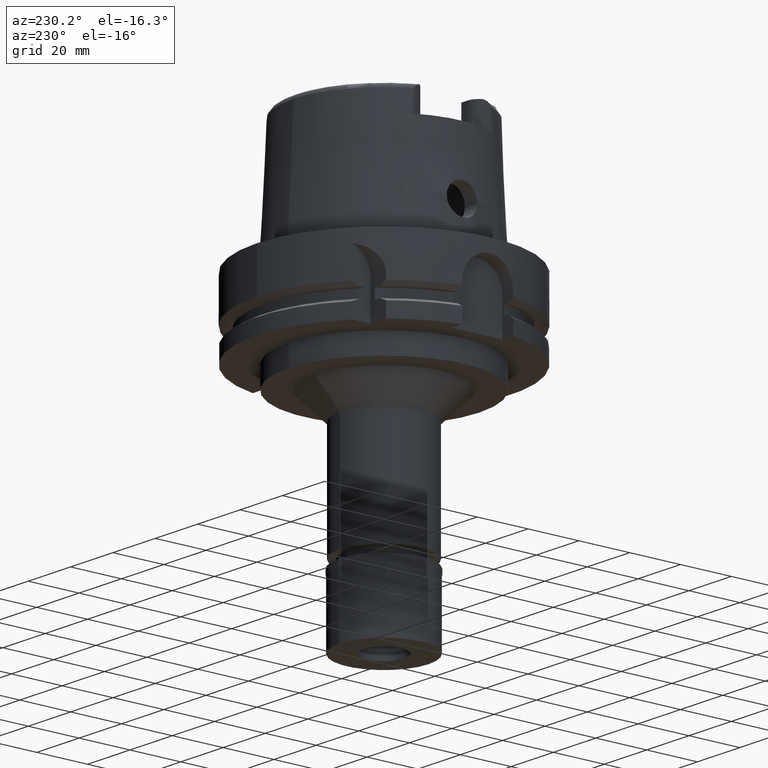
[diagram: clean part render]
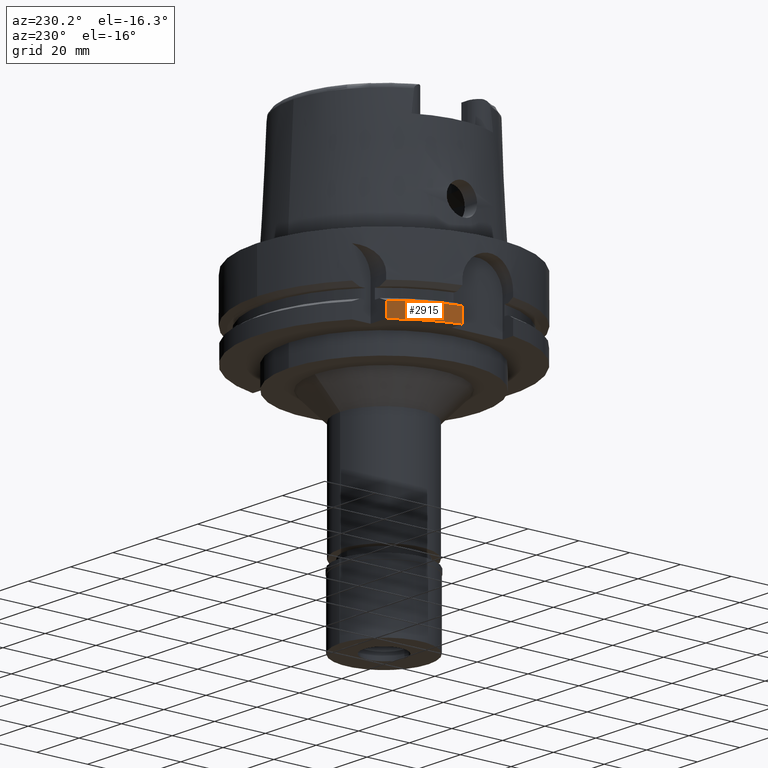
[diagram: same view with one face highlighted and labeled with its STEP entity id]
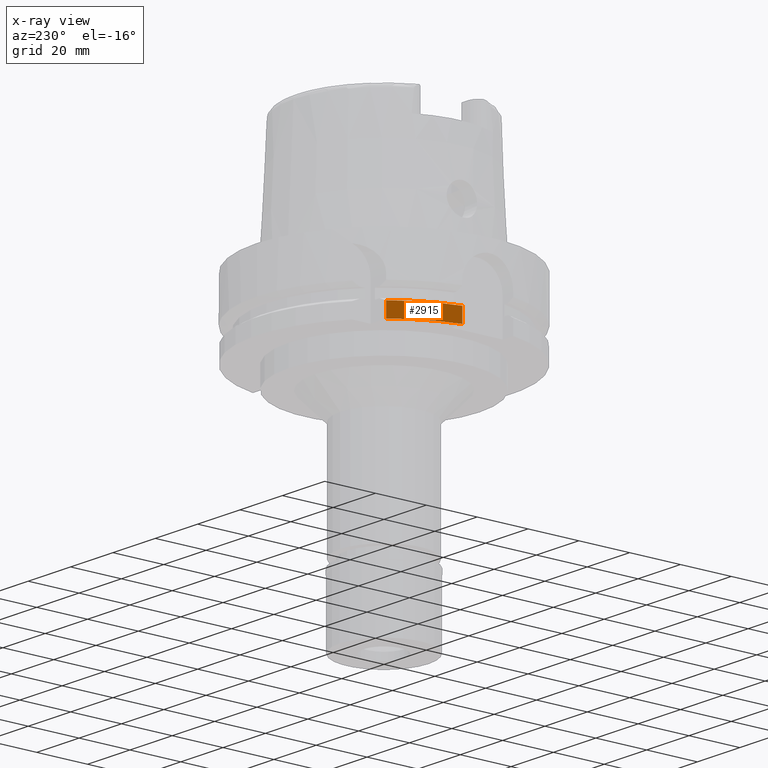
[diagram: x-ray of the same camera — body ghosted, the highlighted face saturated]
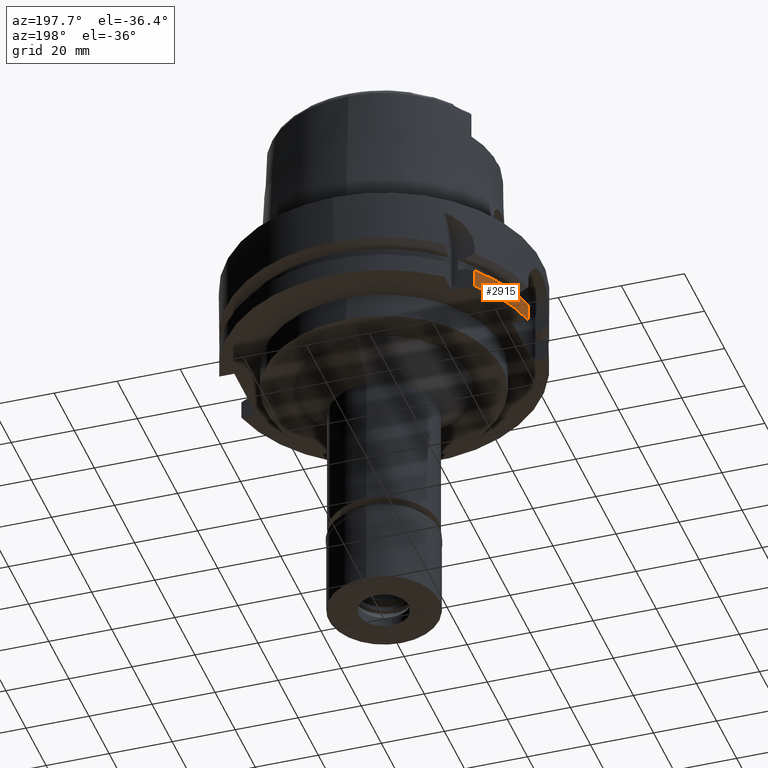
[diagram: same view with one face highlighted and labeled with its STEP entity id]
A machine part, auxiliary view. The second image highlights one B-rep face of the part: STEP entity #2915.
The next image is the same camera in x-ray: the body ghosted, the highlighted face saturated — about 0% of this face is hidden behind the body in this view.
A second angle (auxiliary view) of the same face is appended — the face is thin or edge-on in the first view.
In plain terms, the highlighted cylindrical surface (partial cylindrical patch) has radius 50 mm, axis along (0, 0, 1).
Its self-contained STEP definition (entity closure, byte-faithful):
#47 = VECTOR ( 'NONE', #2283, 1000.000000000000000 ) ;
#54 = CARTESIAN_POINT ( 'NONE',  ( -38.82975730076999810, 31.49999917402000094, -23.24759226099000031 ) ) ;
#174 = VERTEX_POINT ( 'NONE', #54 ) ;
#191 = CARTESIAN_POINT ( 'NONE',  ( -38.82975663071000128, 31.50000000000000000, -29.00000000000000000 ) ) ;
#321 = DIRECTION ( 'NONE',  ( -0.7765951326141738997, 0.6299999999999789102, 0.0000000000000000000 ) ) ;
#377 = CARTESIAN_POINT ( 'NONE',  ( 0.0000000000000000000, 0.0000000000000000000, -29.00000000000000000 ) ) ;
#461 = DIRECTION ( 'NONE',  ( -0.9797958971132723072, 0.1999999999999946265, 0.0000000000000000000 ) ) ;
#526 = DIRECTION ( 'NONE',  ( 0.0000000000000000000, 1.000000000000000000, 0.0000000000000000000 ) ) ;
#895 = CARTESIAN_POINT ( 'NONE',  ( 0.0000000000000000000, 0.0000000000000000000, -116.9500000000000028 ) ) ;
#1036 = AXIS2_PLACEMENT_3D ( 'NONE', #377, #2873, #321 ) ;
#1184 = ORIENTED_EDGE ( 'NONE', *, *, #3256, .T. ) ;
#1230 = CIRCLE ( 'NONE', #4359, 49.99999999999997868 ) ;
#1267 = CYLINDRICAL_SURFACE ( 'NONE', #2646, 50.00000000000000000 ) ;
#1275 = EDGE_CURVE ( 'NONE', #2254, #1945, #1429, .T. ) ;
#1429 = LINE ( 'NONE', #3117, #47 ) ;
#1747 = VECTOR ( 'NONE', #1892, 1000.000000000000227 ) ;
#1750 = FACE_OUTER_BOUND ( 'NONE', #3136, .T. ) ;
#1892 = DIRECTION ( 'NONE',  ( -1.164835666499979694E-07, -1.435883620958975412E-07, 0.9999999999999827915 ) ) ;
#1945 = VERTEX_POINT ( 'NONE', #4149 ) ;
#1981 = VERTEX_POINT ( 'NONE', #4863 ) ;
#2233 = ORIENTED_EDGE ( 'NONE', *, *, #5216, .T. ) ;
#2254 = VERTEX_POINT ( 'NONE', #4733 ) ;
#2283 = DIRECTION ( 'NONE',  ( -8.399427413532000465E-14, 0.0000000000000000000, -1.000000000000000000 ) ) ;
#2317 = LINE ( 'NONE', #191, #1747 ) ;
#2646 = AXIS2_PLACEMENT_3D ( 'NONE', #895, #4270, #526 ) ;
#2873 = DIRECTION ( 'NONE',  ( 0.0000000000000000000, 0.0000000000000000000, 1.000000000000000000 ) ) ;
#2878 = ORIENTED_EDGE ( 'NONE', *, *, #1275, .F. ) ;
#2915 = ADVANCED_FACE ( 'NONE', ( #1750 ), #1267, .T. ) ;
#2963 = CARTESIAN_POINT ( 'NONE',  ( 0.0000000000000000000, 0.0000000000000000000, -23.24759526419000011 ) ) ;
#3117 = CARTESIAN_POINT ( 'NONE',  ( -48.98979485565999425, 10.00000000000000000, -23.24759526419000011 ) ) ;
#3136 = EDGE_LOOP ( 'NONE', ( #2233, #2878, #1184, #4630 ) ) ;
#3163 = CIRCLE ( 'NONE', #1036, 50.00000000000000711 ) ;
#3256 = EDGE_CURVE ( 'NONE', #2254, #174, #1230, .T. ) ;
#3389 = DIRECTION ( 'NONE',  ( 0.0000000000000000000, 0.0000000000000000000, -1.000000000000000000 ) ) ;
#4149 = CARTESIAN_POINT ( 'NONE',  ( -48.98979485565999425, 10.00000000000000000, -29.00000000000000000 ) ) ;
#4270 = DIRECTION ( 'NONE',  ( 0.0000000000000000000, 0.0000000000000000000, 1.000000000000000000 ) ) ;
#4359 = AXIS2_PLACEMENT_3D ( 'NONE', #2963, #3389, #461 ) ;
#4630 = ORIENTED_EDGE ( 'NONE', *, *, #4660, .F. ) ;
#4660 = EDGE_CURVE ( 'NONE', #1981, #174, #2317, .T. ) ;
#4733 = CARTESIAN_POINT ( 'NONE',  ( -48.98979485565999425, 10.00000000000000000, -23.24759526419000011 ) ) ;
#4863 = CARTESIAN_POINT ( 'NONE',  ( -38.82975663071000128, 31.50000000000000000, -29.00000000000000000 ) ) ;
#5216 = EDGE_CURVE ( 'NONE', #1981, #1945, #3163, .T. ) ;